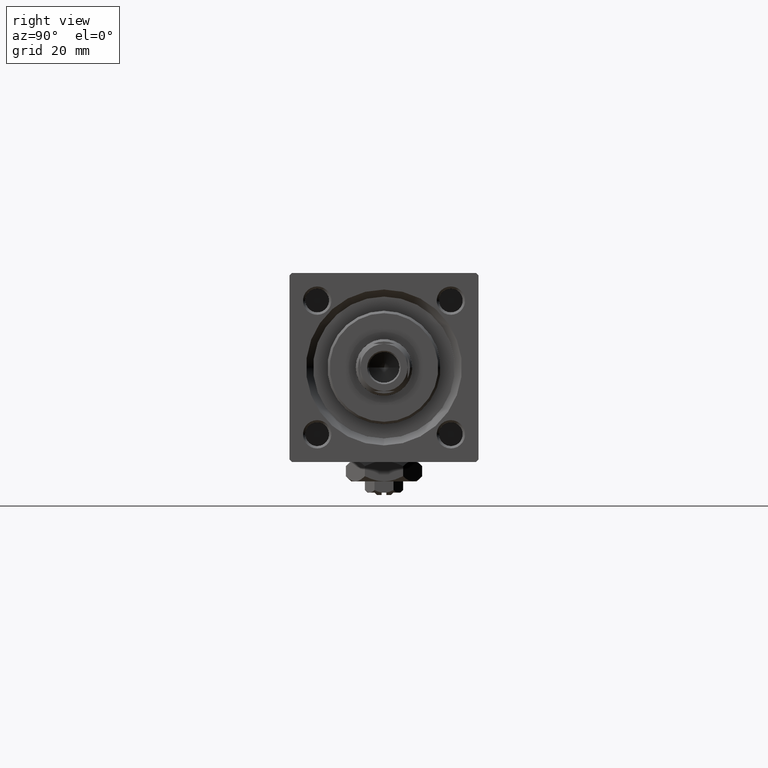
[diagram: clean part render]
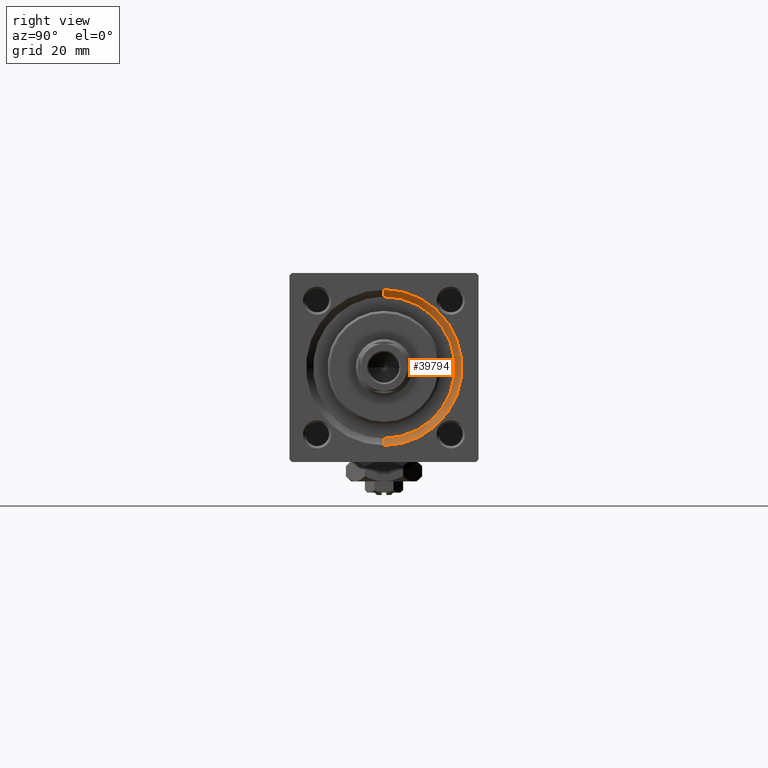
[diagram: same view with one face highlighted and labeled with its STEP entity id]
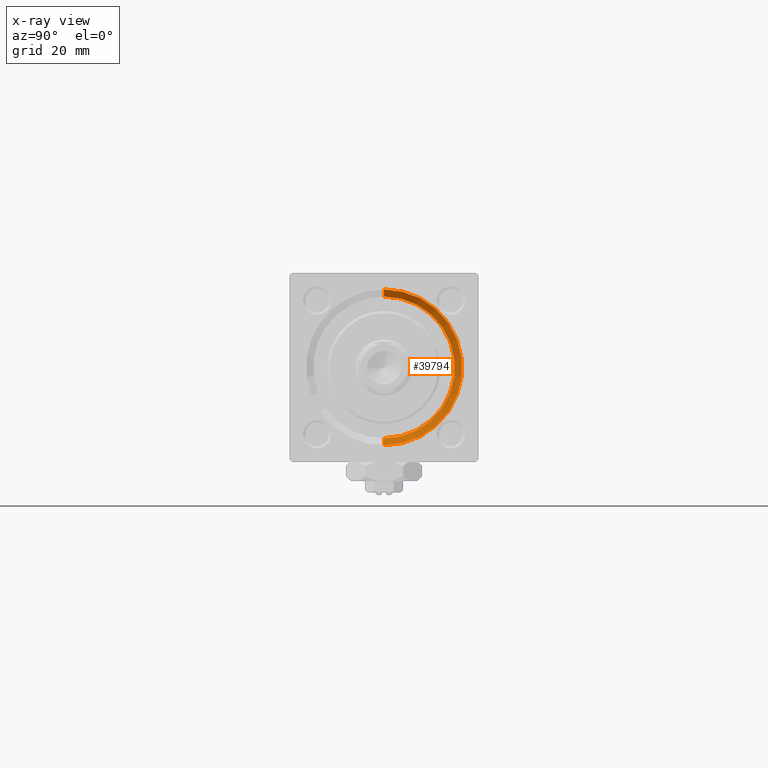
[diagram: x-ray of the same camera — body ghosted, the highlighted face saturated]
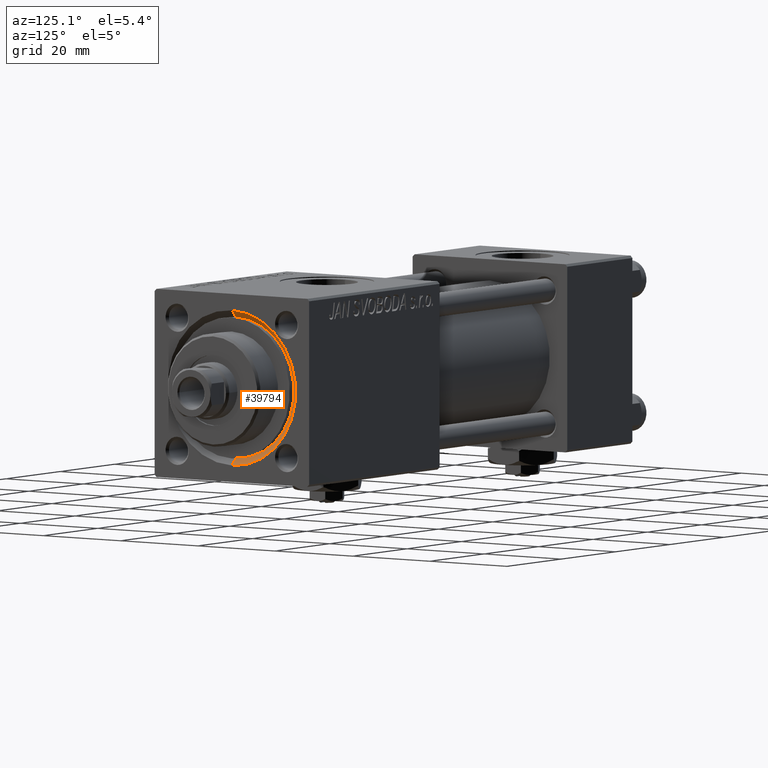
[diagram: same view with one face highlighted and labeled with its STEP entity id]
A machine part, right view. The second image highlights one B-rep face of the part: STEP entity #39794.
The next image is the same camera in x-ray: the body ghosted, the highlighted face saturated — about 0% of this face is hidden behind the body in this view.
A second angle (auxiliary view) of the same face is appended — the face is thin or edge-on in the first view.
In plain terms, the highlighted conical surface has half-angle 45 deg.
Its self-contained STEP definition (entity closure, byte-faithful):
#1653 = EDGE_CURVE ( 'NONE', #5018, #17896, #13644, .T. ) ;
#2213 = FACE_OUTER_BOUND ( 'NONE', #40161, .T. ) ;
#4682 = DIRECTION ( 'NONE',  ( 0.000000000000000000, 0.000000000000000000, 1.000000000000000000 ) ) ;
#5018 = VERTEX_POINT ( 'NONE', #18662 ) ;
#11407 = ORIENTED_EDGE ( 'NONE', *, *, #11546, .F. ) ;
#11546 = EDGE_CURVE ( 'NONE', #14700, #27552, #42953, .T. ) ;
#13575 = CARTESIAN_POINT ( 'NONE',  ( 117.5000000000000000, 1.836970198721029589E-15, 15.00000000000000000 ) ) ;
#13644 = CIRCLE ( 'NONE', #40530, 16.50000000000001421 ) ;
#14107 = CARTESIAN_POINT ( 'NONE',  ( 119.0000000000000142, 0.000000000000000000, -16.50000000000001421 ) ) ;
#14700 = VERTEX_POINT ( 'NONE', #43427 ) ;
#17530 = DIRECTION ( 'NONE',  ( 0.7071067811865474617, 8.659560562354932858E-17, 0.7071067811865474617 ) ) ;
#17896 = VERTEX_POINT ( 'NONE', #14107 ) ;
#18662 = CARTESIAN_POINT ( 'NONE',  ( 119.0000000000000142, 2.020667218593134678E-15, 16.50000000000001421 ) ) ;
#26531 = LINE ( 'NONE', #31009, #37464 ) ;
#26639 = AXIS2_PLACEMENT_3D ( 'NONE', #30683, #42801, #47019 ) ;
#27552 = VERTEX_POINT ( 'NONE', #35919 ) ;
#29098 = DIRECTION ( 'NONE',  ( 1.000000000000000000, 0.000000000000000000, 0.000000000000000000 ) ) ;
#29841 = ORIENTED_EDGE ( 'NONE', *, *, #30055, .T. ) ;
#30055 = EDGE_CURVE ( 'NONE', #14700, #17896, #26531, .T. ) ;
#30490 = DIRECTION ( 'NONE',  ( 0.7071067811865474617, 0.000000000000000000, -0.7071067811865474617 ) ) ;
#30596 = ORIENTED_EDGE ( 'NONE', *, *, #1653, .F. ) ;
#30683 = CARTESIAN_POINT ( 'NONE',  ( 117.5000000000000000, 0.000000000000000000, 0.000000000000000000 ) ) ;
#31009 = CARTESIAN_POINT ( 'NONE',  ( 117.5000000000000000, 0.000000000000000000, -15.00000000000000000 ) ) ;
#33312 = DIRECTION ( 'NONE',  ( 0.000000000000000000, 0.000000000000000000, 1.000000000000000000 ) ) ;
#34098 = ORIENTED_EDGE ( 'NONE', *, *, #42645, .F. ) ;
#35919 = CARTESIAN_POINT ( 'NONE',  ( 117.5000000000000000, 1.836970198721029589E-15, 15.00000000000000000 ) ) ;
#36218 = AXIS2_PLACEMENT_3D ( 'NONE', #37266, #29098, #33312 ) ;
#37266 = CARTESIAN_POINT ( 'NONE',  ( 117.5000000000000000, 0.000000000000000000, 0.000000000000000000 ) ) ;
#37464 = VECTOR ( 'NONE', #30490, 1000.000000000000114 ) ;
#39794 = ADVANCED_FACE ( 'NONE', ( #2213 ), #42632, .F. ) ;
#40161 = EDGE_LOOP ( 'NONE', ( #34098, #11407, #29841, #30596 ) ) ;
#40530 = AXIS2_PLACEMENT_3D ( 'NONE', #44761, #40810, #4682 ) ;
#40810 = DIRECTION ( 'NONE',  ( -1.000000000000000000, -0.000000000000000000, -0.000000000000000000 ) ) ;
#42632 = CONICAL_SURFACE ( 'NONE', #26639, 15.00000000000000000, 0.7853981633974482790 ) ;
#42645 = EDGE_CURVE ( 'NONE', #27552, #5018, #49157, .T. ) ;
#42801 = DIRECTION ( 'NONE',  ( 1.000000000000000000, 0.000000000000000000, 0.000000000000000000 ) ) ;
#42953 = CIRCLE ( 'NONE', #36218, 15.00000000000000000 ) ;
#43427 = CARTESIAN_POINT ( 'NONE',  ( 117.5000000000000000, 0.000000000000000000, -15.00000000000000000 ) ) ;
#44289 = VECTOR ( 'NONE', #17530, 1000.000000000000114 ) ;
#44761 = CARTESIAN_POINT ( 'NONE',  ( 119.0000000000000142, 0.000000000000000000, 0.000000000000000000 ) ) ;
#47019 = DIRECTION ( 'NONE',  ( 0.000000000000000000, 0.000000000000000000, -1.000000000000000000 ) ) ;
#49157 = LINE ( 'NONE', #13575, #44289 ) ;